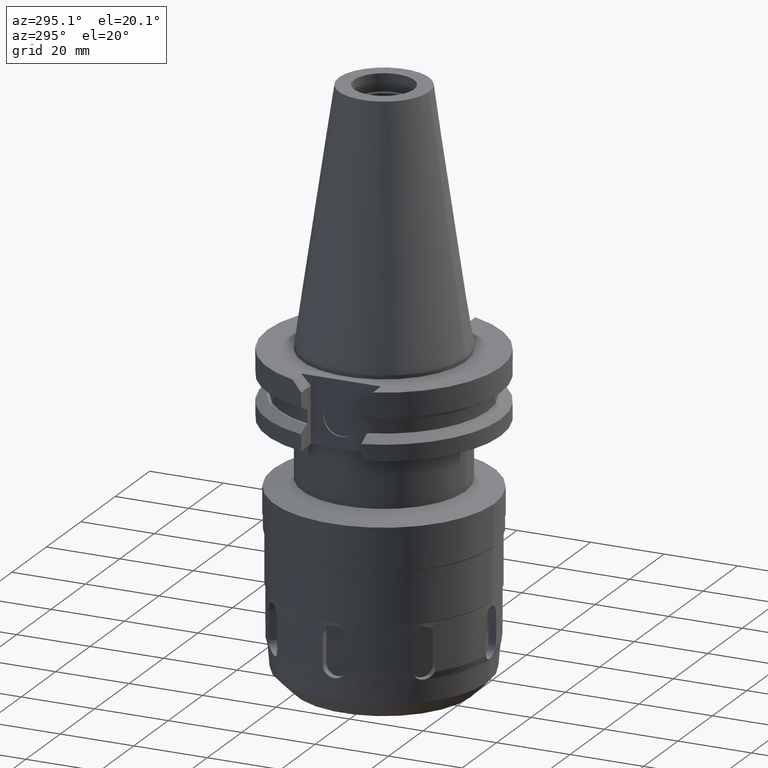
[diagram: clean part render]
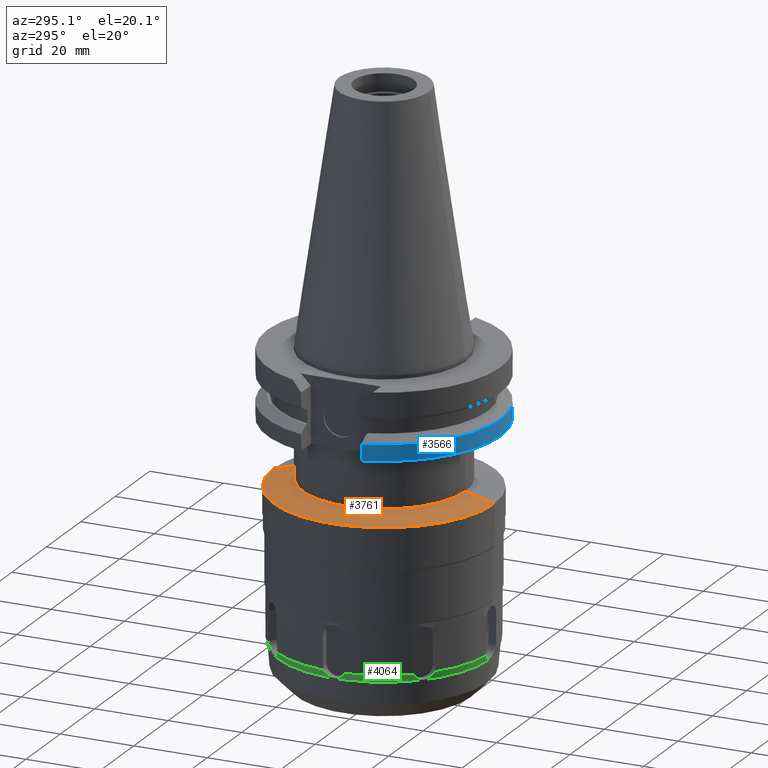
[diagram: same view with three faces highlighted in distinct colors, each labeled with its STEP entity id]
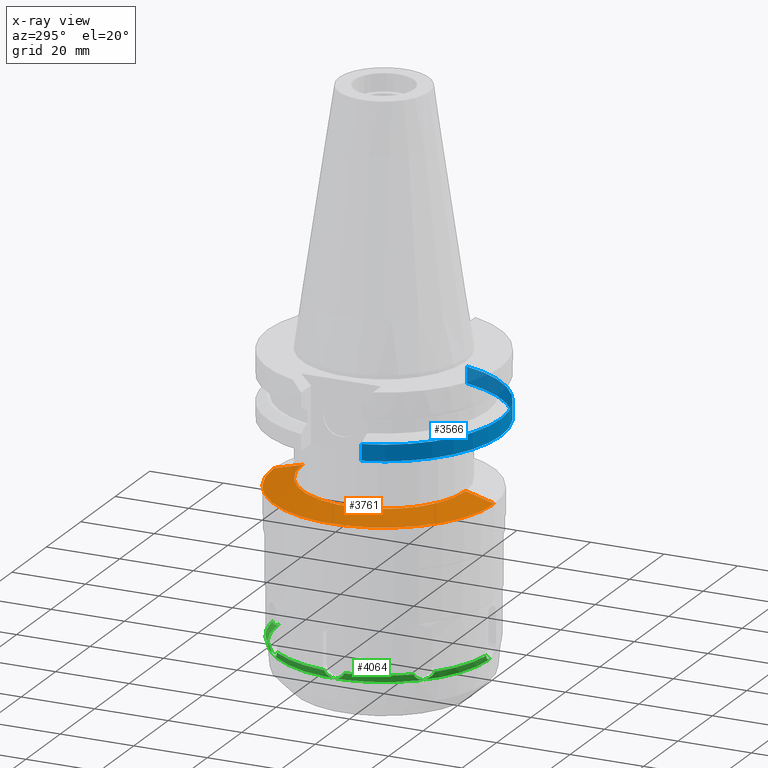
[diagram: x-ray of the same camera — body ghosted, the three highlighted faces saturated]
A machine part, auxiliary view with three faces highlighted in distinct colors.
The next image is the same camera in x-ray (body ghosted, the three faces saturated) — at least one of them is partly hidden behind the body in this view.
Their STEP definitions:

[orange] entity #3761 — the highlighted conical surface has half-angle 75 deg.
#862=DIRECTION('',(0.E0,9.659258262891E-1,-2.588190451024E-1));
#863=VECTOR('',#862,8.049272302688E0);
#864=CARTESIAN_POINT('',(0.E0,2.2225E1,-3.5E1));
#865=LINE('',#864,#863);
#885=CARTESIAN_POINT('',(0.E0,0.E0,-3.5E1));
#886=DIRECTION('',(0.E0,0.E0,1.E0));
#887=DIRECTION('',(0.E0,1.E0,0.E0));
#888=AXIS2_PLACEMENT_3D('',#885,#886,#887);
#893=DIRECTION('',(0.E0,-9.659258262891E-1,-2.588190451024E-1));
#894=VECTOR('',#893,8.049272302688E0);
#895=CARTESIAN_POINT('',(0.E0,-2.2225E1,-3.5E1));
#896=LINE('',#895,#894);
#900=CARTESIAN_POINT('',(0.E0,0.E0,-3.708330497116E1));
#901=DIRECTION('',(0.E0,0.E0,-1.E0));
#902=DIRECTION('',(0.E0,-1.E0,0.E0));
#903=AXIS2_PLACEMENT_3D('',#900,#901,#902);
#2894=CARTESIAN_POINT('',(0.E0,3.E1,-3.708330497115E1));
#2895=VERTEX_POINT('',#2894);
#2896=CARTESIAN_POINT('',(0.E0,-3.E1,-3.708330497115E1));
#2897=VERTEX_POINT('',#2896);
#2898=CARTESIAN_POINT('',(0.E0,2.2225E1,-3.5E1));
#2899=VERTEX_POINT('',#2898);
#2900=CARTESIAN_POINT('',(0.E0,-2.2225E1,-3.5E1));
#2901=VERTEX_POINT('',#2900);
#3749=CARTESIAN_POINT('',(0.E0,0.E0,-3.604165248558E1));
#3750=DIRECTION('',(0.E0,0.E0,-1.E0));
#3751=DIRECTION('',(0.E0,-1.E0,0.E0));
#3752=AXIS2_PLACEMENT_3D('',#3749,#3750,#3751);
#3753=CONICAL_SURFACE('',#3752,2.61125E1,7.5E1);
#3754=ORIENTED_EDGE('',*,*,#3739,.F.);
#3755=ORIENTED_EDGE('',*,*,#3716,.T.);
#3756=ORIENTED_EDGE('',*,*,#3743,.T.);
#3758=ORIENTED_EDGE('',*,*,#3757,.T.);
#3759=EDGE_LOOP('',(#3754,#3755,#3756,#3758));
#3760=FACE_OUTER_BOUND('',#3759,.F.);
#889=CIRCLE('',#888,2.2225E1);
#904=CIRCLE('',#903,3.E1);
#3716=EDGE_CURVE('',#2899,#2901,#889,.T.);
#3739=EDGE_CURVE('',#2899,#2895,#865,.T.);
#3743=EDGE_CURVE('',#2901,#2897,#896,.T.);
#3757=EDGE_CURVE('',#2897,#2895,#904,.T.);
#3761=ADVANCED_FACE('',(#3760),#3753,.T.);

[blue] entity #3566 — the highlighted cylindrical surface (partial cylindrical patch) has radius 31.75 mm, axis along (0, 0, -1).
#235=CARTESIAN_POINT('',(0.E0,0.E0,-1.905E1));
#236=DIRECTION('',(0.E0,0.E0,1.E0));
#237=DIRECTION('',(-9.661575315241E-1,-2.579527559055E-1,0.E0));
#238=AXIS2_PLACEMENT_3D('',#235,#236,#237);
#243=CARTESIAN_POINT('',(0.E0,0.E0,-1.905E1));
#244=DIRECTION('',(0.E0,0.E0,1.E0));
#245=DIRECTION('',(0.E0,-1.E0,0.E0));
#246=AXIS2_PLACEMENT_3D('',#243,#244,#245);
#636=DIRECTION('',(3.682782912187E-8,1.379385472868E-7,-1.E0));
#637=VECTOR('',#636,4.396327811814E0);
#638=CARTESIAN_POINT('',(3.067550146398E1,-8.190000606423E0,-1.465367218819E1));
#639=LINE('',#638,#637);
#643=DIRECTION('',(-7.637137712320E-9,2.860419816342E-8,1.E0));
#644=VECTOR('',#643,4.396334354667E0);
#645=CARTESIAN_POINT('',(-3.067550162589E1,-8.19E0,-1.905E1));
#646=LINE('',#645,#644);
#792=CARTESIAN_POINT('',(0.E0,0.E0,-1.465366676908E1));
#793=DIRECTION('',(0.E0,0.E0,-1.E0));
#794=DIRECTION('',(9.661575315241E-1,-2.579527559055E-1,0.E0));
#795=AXIS2_PLACEMENT_3D('',#792,#793,#794);
#800=CARTESIAN_POINT('',(0.E0,0.E0,-1.465366676908E1));
#801=DIRECTION('',(0.E0,0.E0,-1.E0));
#802=DIRECTION('',(0.E0,-1.E0,0.E0));
#803=AXIS2_PLACEMENT_3D('',#800,#801,#802);
#2920=CARTESIAN_POINT('',(-3.067550162589E1,-8.19E0,-1.905E1));
#2921=VERTEX_POINT('',#2920);
#2922=CARTESIAN_POINT('',(1.540277123354E-14,-3.175E1,-1.905E1));
#2923=CARTESIAN_POINT('',(3.067550162589E1,-8.19E0,-1.905E1));
#2924=VERTEX_POINT('',#2922);
#2925=VERTEX_POINT('',#2923);
#2934=CARTESIAN_POINT('',(3.067550146398E1,-8.190000606423E0,
-1.465367218819E1));
#2935=VERTEX_POINT('',#2934);
#2946=CARTESIAN_POINT('',(-3.067550165947E1,-8.189999874246E0,
-1.465366564533E1));
#2947=VERTEX_POINT('',#2946);
#2948=CARTESIAN_POINT('',(0.E0,-3.175E1,-1.465366676908E1));
#2949=VERTEX_POINT('',#2948);
#3550=CARTESIAN_POINT('',(0.E0,0.E0,7.61075E1));
#3551=DIRECTION('',(0.E0,0.E0,-1.E0));
#3552=DIRECTION('',(0.E0,-1.E0,0.E0));
#3553=AXIS2_PLACEMENT_3D('',#3550,#3551,#3552);
#3554=CYLINDRICAL_SURFACE('',#3553,3.175E1);
#3555=ORIENTED_EDGE('',*,*,#3532,.T.);
#3556=ORIENTED_EDGE('',*,*,#3251,.F.);
#3557=ORIENTED_EDGE('',*,*,#3249,.F.);
#3559=ORIENTED_EDGE('',*,*,#3558,.T.);
#3561=ORIENTED_EDGE('',*,*,#3560,.F.);
#3563=ORIENTED_EDGE('',*,*,#3562,.F.);
#3564=EDGE_LOOP('',(#3555,#3556,#3557,#3559,#3561,#3563));
#3565=FACE_OUTER_BOUND('',#3564,.F.);
#239=CIRCLE('',#238,3.175E1);
#247=CIRCLE('',#246,3.175E1);
#796=CIRCLE('',#795,3.175E1);
#804=CIRCLE('',#803,3.175E1);
#3249=EDGE_CURVE('',#2921,#2924,#239,.T.);
#3251=EDGE_CURVE('',#2924,#2925,#247,.T.);
#3532=EDGE_CURVE('',#2935,#2925,#639,.T.);
#3558=EDGE_CURVE('',#2921,#2947,#646,.T.);
#3560=EDGE_CURVE('',#2949,#2947,#804,.T.);
#3562=EDGE_CURVE('',#2935,#2949,#796,.T.);
#3566=ADVANCED_FACE('',(#3565),#3554,.T.);

[green] entity #4064 — the highlighted conical surface has half-angle 15 deg.
#1349=CARTESIAN_POINT('',(-1.864707273419E1,2.253550993468E1,
-7.619999790838E1));
#1350=CARTESIAN_POINT('',(-1.868250879182E1,2.242259617335E1,
-7.644035358193E1));
#1351=CARTESIAN_POINT('',(-1.880658930586E1,2.216226994091E1,
-7.689010934184E1));
#1352=CARTESIAN_POINT('',(-1.912754318563E1,2.169484127851E1,
-7.742903023634E1));
#1353=CARTESIAN_POINT('',(-1.955380560479E1,2.117439824816E1,
-7.780861929784E1));
#1354=CARTESIAN_POINT('',(-2.006965763722E1,2.061170070821E1,
-7.800981056764E1));
#1355=CARTESIAN_POINT('',(-2.062450165135E1,2.005740429446E1,
-7.800740177417E1));
#1356=CARTESIAN_POINT('',(-2.118540338921E1,1.954429022719E1,
-7.780239020920E1));
#1357=CARTESIAN_POINT('',(-2.170267193268E1,1.912171048340E1,
-7.742135342839E1));
#1358=CARTESIAN_POINT('',(-2.216609036475E1,1.880456554062E1,
-7.688402433327E1));
#1359=CARTESIAN_POINT('',(-2.242369898520E1,1.868212554841E1,
-7.643807731800E1));
#1360=CARTESIAN_POINT('',(-2.253559122356E1,1.864704128431E1,
-7.619982188006E1));
#1365=CARTESIAN_POINT('',(0.E0,0.E0,-7.62E1));
#1366=DIRECTION('',(0.E0,0.E0,1.E0));
#1367=DIRECTION('',(-7.704446797513E-1,6.375068591340E-1,0.E0));
#1368=AXIS2_PLACEMENT_3D('',#1365,#1366,#1367);
#1373=CARTESIAN_POINT('',(-2.912048346559E1,2.749540345414E0,
-7.619999792177E1));
#1374=CARTESIAN_POINT('',(-2.906570642763E1,2.644656441279E0,
-7.644031862314E1));
#1375=CARTESIAN_POINT('',(-2.896936032953E1,2.372883809873E0,
-7.689008866811E1));
#1376=CARTESIAN_POINT('',(-2.886572013280E1,1.814946818198E0,
-7.742937713712E1));
#1377=CARTESIAN_POINT('',(-2.879916344108E1,1.145461429381E0,
-7.780877748554E1));
#1378=CARTESIAN_POINT('',(-2.876607174626E1,3.832756430668E-1,
-7.800976479272E1));
#1379=CARTESIAN_POINT('',(-2.876644818201E1,-4.004772581150E-1,
-7.800742365500E1));
#1380=CARTESIAN_POINT('',(-2.880018274773E1,-1.159517132423E0,
-7.780274897347E1));
#1381=CARTESIAN_POINT('',(-2.886709325799E1,-1.824344564368E0,
-7.742191506358E1));
#1382=CARTESIAN_POINT('',(-2.897058989801E1,-2.376874585595E0,
-7.688420131017E1));
#1383=CARTESIAN_POINT('',(-2.906619695039E1,-2.645672200687E0,
-7.643812259702E1));
#1384=CARTESIAN_POINT('',(-2.912051871318E1,-2.749620034037E0,
-7.619982187317E1));
#1389=CARTESIAN_POINT('',(0.E0,0.E0,-7.62E1));
#1390=DIRECTION('',(0.E0,0.E0,1.E0));
#1391=DIRECTION('',(-9.955720807278E-1,-9.400123443457E-2,0.E0));
#1392=AXIS2_PLACEMENT_3D('',#1389,#1390,#1391);
#1397=CARTESIAN_POINT('',(-2.253550995333E1,-1.864707270657E1,
-7.619999792180E1));
#1398=CARTESIAN_POINT('',(-2.242260434754E1,-1.868250620712E1,
-7.644033622923E1));
#1399=CARTESIAN_POINT('',(-2.216230072860E1,-1.880657160088E1,
-7.689006441217E1));
#1400=CARTESIAN_POINT('',(-2.169488172604E1,-1.912751416967E1,
-7.742898653135E1));
#1401=CARTESIAN_POINT('',(-2.117451306514E1,-1.955370673861E1,
-7.780855346577E1));
#1402=CARTESIAN_POINT('',(-2.061179436646E1,-2.006956654845E1,
-7.800979860682E1));
#1403=CARTESIAN_POINT('',(-2.005749232379E1,-2.062441115316E1,
-7.800741337887E1));
#1404=CARTESIAN_POINT('',(-1.954439743843E1,-2.118527862838E1,
-7.780246244920E1));
#1405=CARTESIAN_POINT('',(-1.912173460311E1,-2.170263745350E1,
-7.742139287477E1));
#1406=CARTESIAN_POINT('',(-1.880458436298E1,-2.216605823938E1,
-7.688407013959E1));
#1407=CARTESIAN_POINT('',(-1.868212817819E1,-2.242369065964E1,
-7.643809499746E1));
#1408=CARTESIAN_POINT('',(-1.864704131208E1,-2.253559120487E1,
-7.619982186518E1));
#1413=CARTESIAN_POINT('',(0.E0,0.E0,-7.62E1));
#1414=DIRECTION('',(0.E0,0.E0,1.E0));
#1415=DIRECTION('',(-6.375068622570E-1,-7.704446771672E-1,0.E0));
#1416=AXIS2_PLACEMENT_3D('',#1413,#1414,#1415);
#1421=CARTESIAN_POINT('',(-2.749540302907E0,-2.912048347264E1,
-7.619999793302E1));
#1422=CARTESIAN_POINT('',(-2.655659981082E0,-2.907145320635E1,
-7.641510609682E1));
#1423=CARTESIAN_POINT('',(-2.417517453123E0,-2.898379890342E1,
-7.682136449344E1));
#1424=CARTESIAN_POINT('',(-1.938699181844E0,-2.888531474034E1,
-7.732452986911E1));
#1425=CARTESIAN_POINT('',(-1.349313842430E0,-2.881611510948E1,
-7.770990819688E1));
#1426=CARTESIAN_POINT('',(-6.914943494129E-1,-2.877634118165E1,
-7.794670523255E1));
#1427=CARTESIAN_POINT('',(-2.301460466683E-1,-2.876769145362E1,-7.8E1));
#1428=CARTESIAN_POINT('',(-1.938257923964E-14,-2.876769145362E1,-7.8E1));
#1433=DIRECTION('',(4.659525668335E-14,2.588190450750E-1,-9.659258262965E-1));
#1434=VECTOR('',#1433,6.639877850106E-2);
#1435=CARTESIAN_POINT('',(-1.938257923964E-14,-2.876769145362E1,-7.8E1));
#1436=LINE('',#1435,#1434);
#1440=CARTESIAN_POINT('',(0.E0,0.E0,-7.806413629499E1));
#1441=DIRECTION('',(0.E0,0.E0,-1.E0));
#1442=DIRECTION('',(0.E0,-1.E0,0.E0));
#1443=AXIS2_PLACEMENT_3D('',#1440,#1441,#1442);
#1448=CARTESIAN_POINT('',(0.E0,2.876769145362E1,-7.8E1));
#1449=CARTESIAN_POINT('',(-2.333529423635E-1,2.876769145362E1,-7.8E1));
#1450=CARTESIAN_POINT('',(-6.991856080787E-1,2.877659538639E1,
-7.794513857500E1));
#1451=CARTESIAN_POINT('',(-1.356219834350E0,2.881674379435E1,
-7.770627425746E1));
#1452=CARTESIAN_POINT('',(-1.942150406851E0,2.888593841516E1,
-7.732125810736E1));
#1453=CARTESIAN_POINT('',(-2.417824242941E0,2.898398665426E1,
-7.682054800883E1));
#1454=CARTESIAN_POINT('',(-2.655704725107E0,2.907144067875E1,
-7.641512168498E1));
#1455=CARTESIAN_POINT('',(-2.749619158444E0,2.912051878887E1,
-7.619982378925E1));
#1460=CARTESIAN_POINT('',(0.E0,0.E0,-7.62E1));
#1461=DIRECTION('',(0.E0,0.E0,1.E0));
#1462=DIRECTION('',(-9.400123035400E-2,9.955720811131E-1,0.E0));
#1463=AXIS2_PLACEMENT_3D('',#1460,#1461,#1462);
#1630=CARTESIAN_POINT('',(-1.938257923964E-14,-2.876769145362E1,-7.8E1));
#1729=CARTESIAN_POINT('',(0.E0,2.876769145362E1,-7.8E1));
#1734=DIRECTION('',(1.765450329029E-14,-2.588190450750E-1,-9.659258262965E-1));
#1735=VECTOR('',#1734,6.639877850106E-2);
#1736=CARTESIAN_POINT('',(0.E0,2.876769145362E1,-7.8E1));
#1737=LINE('',#1736,#1735);
#2758=CARTESIAN_POINT('',(0.E0,2.875050618518E1,-7.806413629499E1));
#2759=VERTEX_POINT('',#2758);
#2760=CARTESIAN_POINT('',(-2.905650068648E-14,-2.875050618518E1,
-7.806413629499E1));
#2761=VERTEX_POINT('',#2760);
#2762=VERTEX_POINT('',#1630);
#2775=VERTEX_POINT('',#1729);
#2776=VERTEX_POINT('',#1421);
#2786=VERTEX_POINT('',#1349);
#2787=VERTEX_POINT('',#1360);
#2788=CARTESIAN_POINT('',(-2.912048417574E1,2.749527481267E0,-7.62E1));
#2789=VERTEX_POINT('',#2788);
#2790=VERTEX_POINT('',#1384);
#2791=CARTESIAN_POINT('',(-2.253550135917E1,-1.864708230504E1,-7.62E1));
#2792=VERTEX_POINT('',#2791);
#2793=VERTEX_POINT('',#1408);
#2794=VERTEX_POINT('',#1455);
#4038=CARTESIAN_POINT('',(0.E0,0.E0,-7.713206814749E1));
#4039=DIRECTION('',(0.E0,0.E0,1.E0));
#4040=DIRECTION('',(0.E0,1.E0,0.E0));
#4041=AXIS2_PLACEMENT_3D('',#4038,#4039,#4040);
#4042=CONICAL_SURFACE('',#4041,2.900025309259E1,1.5E1);
#4043=ORIENTED_EDGE('',*,*,#4024,.T.);
#4044=ORIENTED_EDGE('',*,*,#3978,.T.);
#4046=ORIENTED_EDGE('',*,*,#4045,.T.);
#4047=ORIENTED_EDGE('',*,*,#3964,.T.);
#4049=ORIENTED_EDGE('',*,*,#4048,.T.);
#4050=ORIENTED_EDGE('',*,*,#3950,.T.);
#4052=ORIENTED_EDGE('',*,*,#4051,.T.);
#4054=ORIENTED_EDGE('',*,*,#4053,.T.);
#4056=ORIENTED_EDGE('',*,*,#4055,.T.);
#4058=ORIENTED_EDGE('',*,*,#4057,.F.);
#4060=ORIENTED_EDGE('',*,*,#4059,.T.);
#4061=ORIENTED_EDGE('',*,*,#3931,.T.);
#4062=EDGE_LOOP('',(#4043,#4044,#4046,#4047,#4049,#4050,#4052,#4054,#4056,#4058,
#4060,#4061));
#4063=FACE_OUTER_BOUND('',#4062,.F.);
#1361=B_SPLINE_CURVE_WITH_KNOTS('',3,(#1349,#1350,#1351,#1352,#1353,#1354,#1355,
#1356,#1357,#1358,#1359,#1360),.UNSPECIFIED.,.F.,.F.,(4,1,1,1,1,1,1,1,1,4),
(0.E0,1.111111111111E-1,2.222222222222E-1,3.333333333333E-1,4.444444444444E-1,
5.555555555556E-1,6.666666666667E-1,7.777777777778E-1,8.888888888889E-1,1.E0),
.UNSPECIFIED.);
#1369=CIRCLE('',#1368,2.925E1);
#1385=B_SPLINE_CURVE_WITH_KNOTS('',3,(#1373,#1374,#1375,#1376,#1377,#1378,#1379,
#1380,#1381,#1382,#1383,#1384),.UNSPECIFIED.,.F.,.F.,(4,1,1,1,1,1,1,1,1,4),
(0.E0,1.111111111111E-1,2.222222222222E-1,3.333333333333E-1,4.444444444444E-1,
5.555555555556E-1,6.666666666667E-1,7.777777777778E-1,8.888888888889E-1,1.E0),
.UNSPECIFIED.);
#1393=CIRCLE('',#1392,2.925E1);
#1409=B_SPLINE_CURVE_WITH_KNOTS('',3,(#1397,#1398,#1399,#1400,#1401,#1402,#1403,
#1404,#1405,#1406,#1407,#1408),.UNSPECIFIED.,.F.,.F.,(4,1,1,1,1,1,1,1,1,4),
(0.E0,1.111111111111E-1,2.222222222222E-1,3.333333333333E-1,4.444444444444E-1,
5.555555555556E-1,6.666666666667E-1,7.777777777778E-1,8.888888888889E-1,1.E0),
.UNSPECIFIED.);
#1417=CIRCLE('',#1416,2.925E1);
#1429=B_SPLINE_CURVE_WITH_KNOTS('',3,(#1421,#1422,#1423,#1424,#1425,#1426,#1427,
#1428),.UNSPECIFIED.,.F.,.F.,(4,1,1,1,1,4),(0.E0,2.E-1,4.E-1,6.E-1,8.E-1,1.E0),
.UNSPECIFIED.);
#1444=CIRCLE('',#1443,2.875050618518E1);
#1456=B_SPLINE_CURVE_WITH_KNOTS('',3,(#1448,#1449,#1450,#1451,#1452,#1453,#1454,
#1455),.UNSPECIFIED.,.F.,.F.,(4,1,1,1,1,4),(0.E0,2.E-1,4.E-1,6.E-1,8.E-1,1.E0),
.UNSPECIFIED.);
#1464=CIRCLE('',#1463,2.925E1);
#3931=EDGE_CURVE('',#2794,#2786,#1464,.T.);
#3950=EDGE_CURVE('',#2793,#2776,#1417,.T.);
#3964=EDGE_CURVE('',#2790,#2792,#1393,.T.);
#3978=EDGE_CURVE('',#2787,#2789,#1369,.T.);
#4024=EDGE_CURVE('',#2786,#2787,#1361,.T.);
#4045=EDGE_CURVE('',#2789,#2790,#1385,.T.);
#4048=EDGE_CURVE('',#2792,#2793,#1409,.T.);
#4051=EDGE_CURVE('',#2776,#2762,#1429,.T.);
#4053=EDGE_CURVE('',#2762,#2761,#1436,.T.);
#4055=EDGE_CURVE('',#2761,#2759,#1444,.T.);
#4057=EDGE_CURVE('',#2775,#2759,#1737,.T.);
#4059=EDGE_CURVE('',#2775,#2794,#1456,.T.);
#4064=ADVANCED_FACE('',(#4063),#4042,.T.);